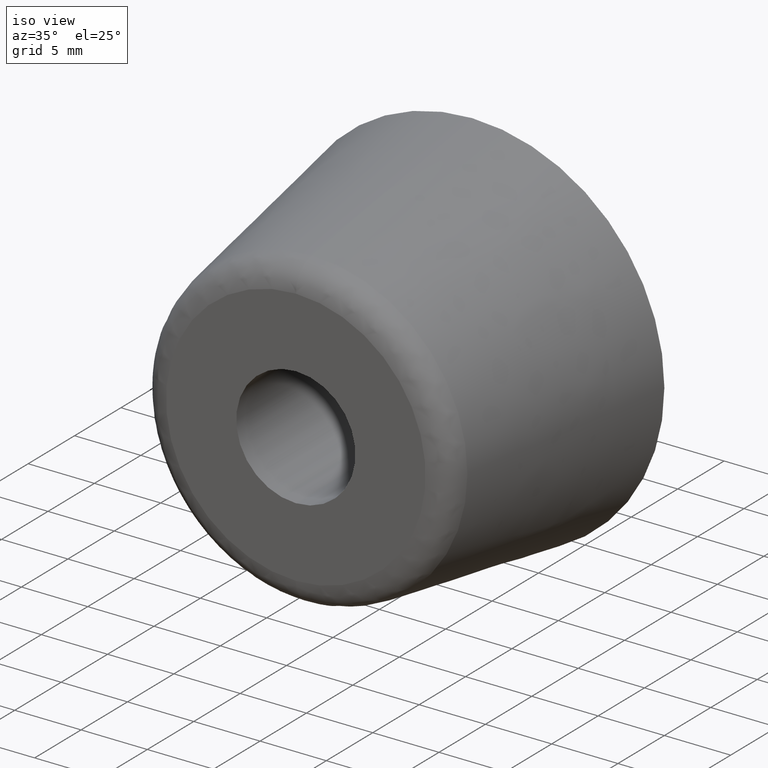
[diagram: clean part render]
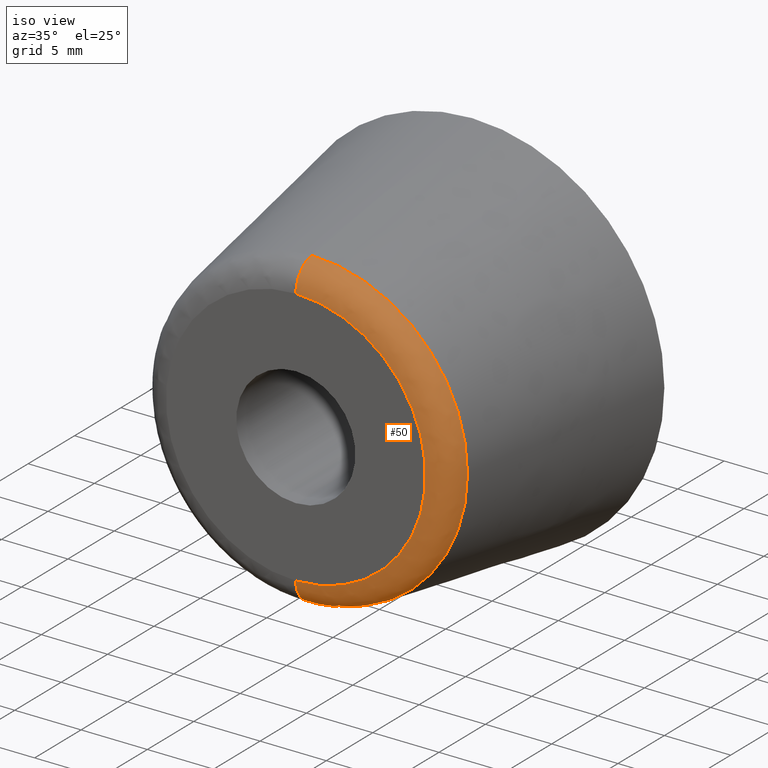
[diagram: same view with one face highlighted and labeled with its STEP entity id]
A machine part, iso view. The second image highlights one B-rep face of the part: STEP entity #50.
In plain terms, the highlighted face is a freeform B-spline surface patch.
Its self-contained STEP definition (entity closure, byte-faithful):
#50=ADVANCED_FACE('',(#155),#154,.T.);
#154=( BOUNDED_SURFACE() B_SPLINE_SURFACE( 2,2,((#250,#251,#252,#253,#254),(#255,#256,#257,#258,#259),(#260,#261,#262,#263,#264),(#265,#266,#267,#268,#269),(#270,#271,#272,#273,#274)), .UNSPECIFIED.,.F.,.F.,.F.) B_SPLINE_SURFACE_WITH_KNOTS((3,2,3),(3,2,3),(0.00000000000E+00,5.00000000000E-01,1.00000000000E+00),(0.00000000000E+00,5.00000000000E-01,1.00000000000E+00), .UNSPECIFIED. ) GEOMETRIC_REPRESENTATION_ITEM() RATIONAL_B_SPLINE_SURFACE(((1.00000000000E+00,7.60250805153E-01,1.00000000000E+00,7.60250805153E-01,1.00000000000E+00),(7.07106781187E-01,5.37578499727E-01,7.07106781187E-01,5.37578499727E-01,7.07106781187E-01),(1.00000000000E+00,7.60250805153E-01,1.00000000000E+00,7.60250805153E-01,1.00000000000E+00),(7.07106781187E-01,5.37578499727E-01,7.07106781187E-01,5.37578499727E-01,7.07106781187E-01),(1.00000000000E+00,7.60250805153E-01,1.00000000000E+00,7.60250805153E-01,1.00000000000E+00))) REPRESENTATION_ITEM('') SURFACE() );
#155=FACE_OUTER_BOUND('',#275,.T.);
#250=CARTESIAN_POINT('',(-4.75901458700E-20,-1.73119251469E+01,-1.17665381347E+01));
#251=CARTESIAN_POINT('',(-4.65121237223E-20,-1.90000000000E+01,-1.15000000000E+01));
#252=CARTESIAN_POINT('',(-3.96000670436E-20,-1.90000000000E+01,-9.79101220403E+00));
#253=CARTESIAN_POINT('',(-3.26880103648E-20,-1.90000000000E+01,-8.08202440807E+00));
#254=CARTESIAN_POINT('',(-3.16099882172E-20,-1.73119251469E+01,-7.81548627338E+00));
#255=CARTESIAN_POINT('',(1.17665381347E+01,-1.73119251469E+01,-1.17665381347E+01));
#256=CARTESIAN_POINT('',(1.15000000000E+01,-1.90000000000E+01,-1.15000000000E+01));
#257=CARTESIAN_POINT('',(9.79101220403E+00,-1.90000000000E+01,-9.79101220403E+00));
#258=CARTESIAN_POINT('',(8.08202440807E+00,-1.90000000000E+01,-8.08202440807E+00));
#259=CARTESIAN_POINT('',(7.81548627338E+00,-1.73119251469E+01,-7.81548627338E+00));
#260=CARTESIAN_POINT('',(1.17665381347E+01,-1.73119251469E+01,-7.20540253331E-16));
#261=CARTESIAN_POINT('',(1.15000000000E+01,-1.90000000000E+01,-7.04218421633E-16));
#262=CARTESIAN_POINT('',(9.79101220403E+00,-1.90000000000E+01,-5.99566187871E-16));
#263=CARTESIAN_POINT('',(8.08202440807E+00,-1.90000000000E+01,-4.94913954109E-16));
#264=CARTESIAN_POINT('',(7.81548627338E+00,-1.73119251469E+01,-4.78592122412E-16));
#265=CARTESIAN_POINT('',(1.17665381347E+01,-1.73119251469E+01,1.17665381347E+01));
#266=CARTESIAN_POINT('',(1.15000000000E+01,-1.90000000000E+01,1.15000000000E+01));
#267=CARTESIAN_POINT('',(9.79101220403E+00,-1.90000000000E+01,9.79101220403E+00));
#268=CARTESIAN_POINT('',(8.08202440807E+00,-1.90000000000E+01,8.08202440807E+00));
#269=CARTESIAN_POINT('',(7.81548627338E+00,-1.73119251469E+01,7.81548627338E+00));
#270=CARTESIAN_POINT('',(1.44103291652E-15,-1.73119251469E+01,1.17665381347E+01));
#271=CARTESIAN_POINT('',(1.40839033114E-15,-1.90000000000E+01,1.15000000000E+01));
#272=CARTESIAN_POINT('',(1.19909277568E-15,-1.90000000000E+01,9.79101220403E+00));
#273=CARTESIAN_POINT('',(9.89795220208E-16,-1.90000000000E+01,8.08202440807E+00));
#274=CARTESIAN_POINT('',(9.57152634835E-16,-1.73119251469E+01,7.81548627338E+00));
#275=EDGE_LOOP('',(#316,#317,#318,#319));
#316=ORIENTED_EDGE('',*,*,#335,.T.);
#317=ORIENTED_EDGE('',*,*,#340,.T.);
#318=ORIENTED_EDGE('',*,*,#328,.F.);
#319=ORIENTED_EDGE('',*,*,#341,.F.);
#328=EDGE_CURVE('',#398,#399,#400,.T.);
#335=EDGE_CURVE('',#426,#433,#446,.T.);
#340=EDGE_CURVE('',#433,#399,#476,.T.);
#341=EDGE_CURVE('',#426,#398,#482,.T.);
#398=VERTEX_POINT('',#528);
#399=VERTEX_POINT('',#529);
#400=CIRCLE('',#533,9.79101220403E+00);
#426=VERTEX_POINT('',#548);
#433=VERTEX_POINT('',#551);
#446=CIRCLE('',#561,1.17665381347E+01);
#476=(BOUNDED_CURVE() B_SPLINE_CURVE(2,(#570,#571,#572),.UNSPECIFIED.,.F.,.F.) B_SPLINE_CURVE_WITH_KNOTS((3,3),(0.00000000000E+00,5.00000000000E-01),.UNSPECIFIED.) CURVE() GEOMETRIC_REPRESENTATION_ITEM() RATIONAL_B_SPLINE_CURVE((1.00000000000E+00,7.60250805153E-01,1.00000000000E+00)) REPRESENTATION_ITEM('') );
#482=(BOUNDED_CURVE() B_SPLINE_CURVE(3,(#573,#574,#575,#576,#577),.UNSPECIFIED.,.F.,.F.) B_SPLINE_CURVE_WITH_KNOTS((4,1,4),(0.00000000000E+00,2.50000001932E-01,5.00000003439E-01),.UNSPECIFIED.) CURVE() GEOMETRIC_REPRESENTATION_ITEM() RATIONAL_B_SPLINE_CURVE((1.00000000000E+00,1.00000000000E+00,1.00000000000E+00,1.00000000000E+00,1.00000000000E+00)) REPRESENTATION_ITEM('') );
#528=CARTESIAN_POINT('',(0.00000000000E+00,-1.90000000000E+01,-9.79101220403E+00));
#529=CARTESIAN_POINT('',(5.92118946467E-16,-1.90000000000E+01,9.79101220403E+00));
#530=CARTESIAN_POINT('',(0.00000000000E+00,-1.90000000000E+01,0.00000000000E+00));
#531=DIRECTION('',(0.00000000000E+00,-1.00000000000E+00,-0.00000000000E+00));
#532=DIRECTION('',(-1.22460635382E-16,0.00000000000E+00,-1.00000000000E+00));
#533=AXIS2_PLACEMENT_3D('',#530,#531,#532);
#548=CARTESIAN_POINT('',(0.00000000000E+00,-1.73119251469E+01,-1.17665381347E+01));
#551=CARTESIAN_POINT('',(-5.92118946467E-16,-1.73119251469E+01,1.17665381347E+01));
#558=CARTESIAN_POINT('',(0.00000000000E+00,-1.73119251469E+01,0.00000000000E+00));
#559=DIRECTION('',(0.00000000000E+00,-1.00000000000E+00,-0.00000000000E+00));
#560=DIRECTION('',(-1.22460635382E-16,0.00000000000E+00,-1.00000000000E+00));
#561=AXIS2_PLACEMENT_3D('',#558,#559,#560);
#570=CARTESIAN_POINT('',(-1.44093773622E-15,-1.73119251469E+01,1.17665381347E+01));
#571=CARTESIAN_POINT('',(-1.40829730690E-15,-1.90000000000E+01,1.15000000000E+01));
#572=CARTESIAN_POINT('',(-1.19901357554E-15,-1.90000000000E+01,9.79101220403E+00));
#573=CARTESIAN_POINT('',(1.77635683940E-15,-1.73119251469E+01,-1.17665381347E+01));
#574=CARTESIAN_POINT('',(1.93184466670E-15,-1.77745120704E+01,-1.16964338038E+01));
#575=CARTESIAN_POINT('',(1.98380966845E-15,-1.86522973029E+01,-1.12028901535E+01));
#576=CARTESIAN_POINT('',(1.50096823544E-15,-1.90028997894E+01,-1.02588720684E+01));
#577=CARTESIAN_POINT('',(1.18423789277E-15,-1.90000000000E+01,-9.79101218616E+00));